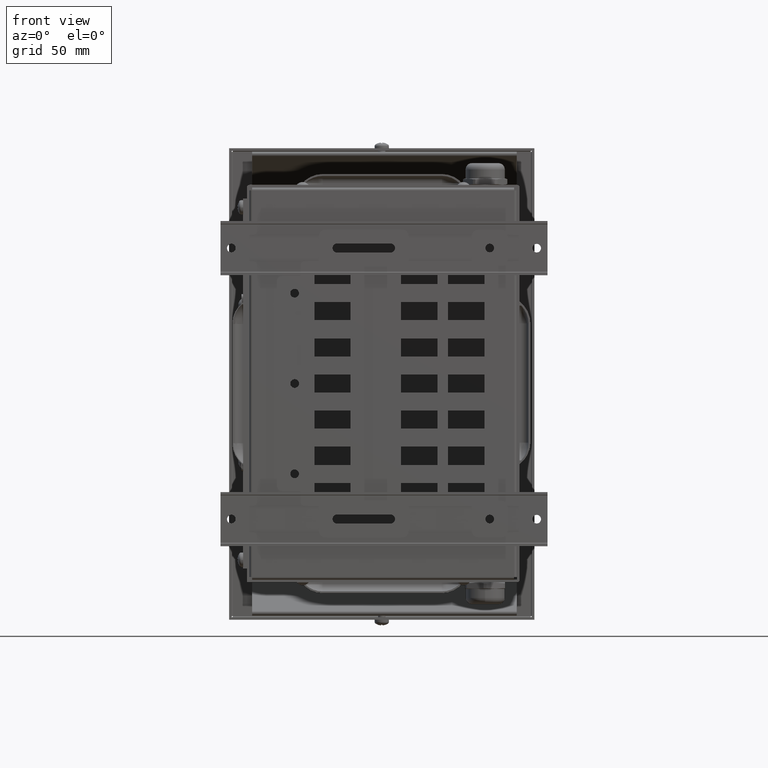
[diagram: clean part render]
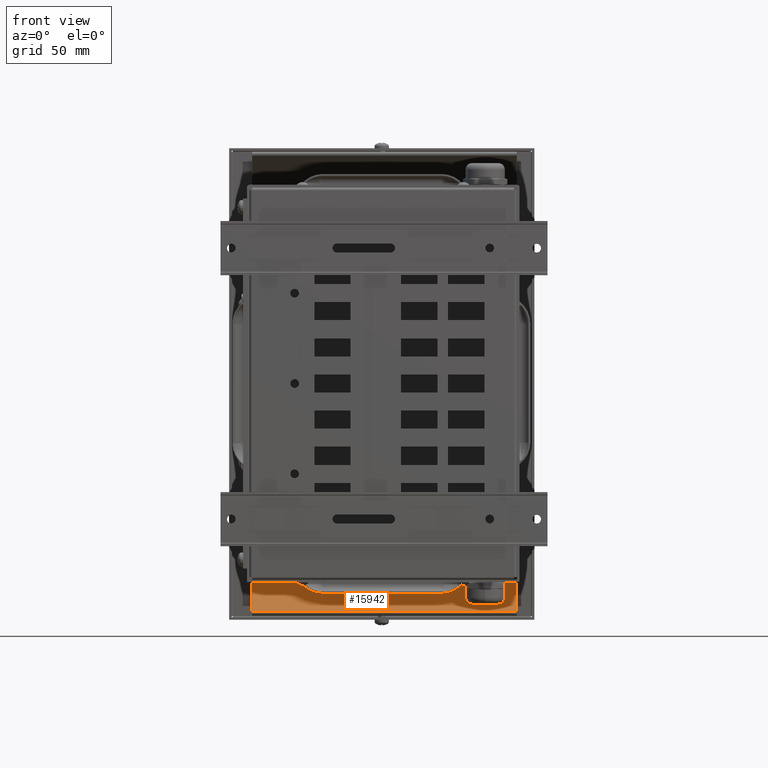
[diagram: same view with one face highlighted and labeled with its STEP entity id]
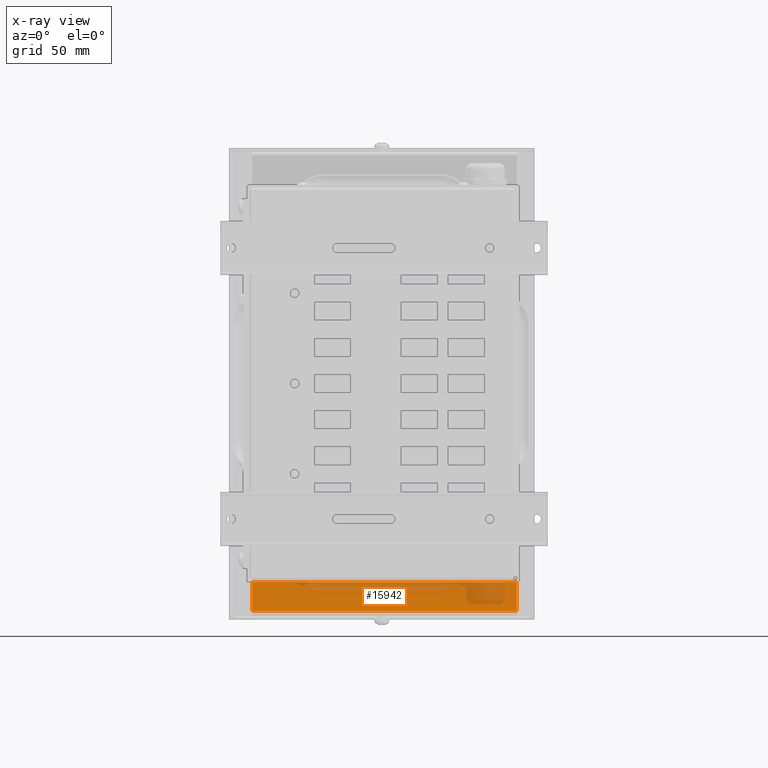
[diagram: x-ray of the same camera — body ghosted, the highlighted face saturated]
A machine part, front view. The second image highlights one B-rep face of the part: STEP entity #15942.
The next image is the same camera in x-ray: the body ghosted, the highlighted face saturated — about 33% of this face is hidden behind the body in this view.
In plain terms, the highlighted planar face has unit normal (0, 0.7071, -0.7071).
Its self-contained STEP definition (entity closure, byte-faithful):
#613=PLANE('',#17069);
#1962=FACE_OUTER_BOUND('',#2823,.T.);
#2823=EDGE_LOOP('',(#11528,#11529,#11530,#11531));
#3967=LINE('',#23163,#5520);
#4012=LINE('',#23263,#5565);
#4014=LINE('',#23267,#5567);
#4015=LINE('',#23268,#5568);
#5520=VECTOR('',#18697,10.);
#5565=VECTOR('',#18782,0.66099999999998);
#5567=VECTOR('',#18786,10.);
#5568=VECTOR('',#18787,0.66099999999998);
#7692=VERTEX_POINT('',#23160);
#7693=VERTEX_POINT('',#23162);
#7728=VERTEX_POINT('',#23261);
#7729=VERTEX_POINT('',#23266);
#9133=EDGE_CURVE('',#7693,#7692,#3967,.T.);
#9183=EDGE_CURVE('',#7692,#7728,#4012,.T.);
#9185=EDGE_CURVE('',#7728,#7729,#4014,.T.);
#9186=EDGE_CURVE('',#7693,#7729,#4015,.T.);
#11528=ORIENTED_EDGE('',*,*,#9185,.T.);
#11529=ORIENTED_EDGE('',*,*,#9186,.F.);
#11530=ORIENTED_EDGE('',*,*,#9133,.T.);
#11531=ORIENTED_EDGE('',*,*,#9183,.T.);
#15942=ADVANCED_FACE('',(#1962),#613,.F.);
#17069=AXIS2_PLACEMENT_3D('',#23265,#18784,#18785);
#18697=DIRECTION('',(1.,8.1010575271671E-15,-1.95576829509933E-14));
#18782=DIRECTION('',(8.1010575271671E-15,0.707106781169721,0.707106781203375));
#18784=DIRECTION('center_axis',(-1.95597572127465E-14,0.707106781203375,
-0.70710678116972));
#18785=DIRECTION('ref_axis',(1.,8.10252425171883E-15,-1.95591496755449E-14));
#18786=DIRECTION('',(-1.,-8.10252425171883E-15,1.95591496755449E-14));
#18787=DIRECTION('',(8.1010575271671E-15,0.707106781169721,0.707106781203375));
#23160=CARTESIAN_POINT('',(149.498999999986,202.677298074861,-15.8241161394649));
#23162=CARTESIAN_POINT('',(2.99999999998929,202.67729807486,-15.8241161394621));
#23163=CARTESIAN_POINT('',(2.99999999998929,202.67729807486,-15.8241161394621));
#23261=CARTESIAN_POINT('',(149.498999999986,218.499707106784,-0.00170710678881747));
#23263=CARTESIAN_POINT('',(149.498999999986,219.968079917808,1.46666570430533));
#23265=CARTESIAN_POINT('Origin',(76.2494999999875,211.13914239495,-7.36227181897089));
#23266=CARTESIAN_POINT('',(2.9999999999894,218.499707106783,-0.00170710678593977));
#23267=CARTESIAN_POINT('',(76.2494999999875,218.499707106783,-0.00170710678737862));
#23268=CARTESIAN_POINT('',(2.99999999998941,219.968079917807,1.46666570430821));